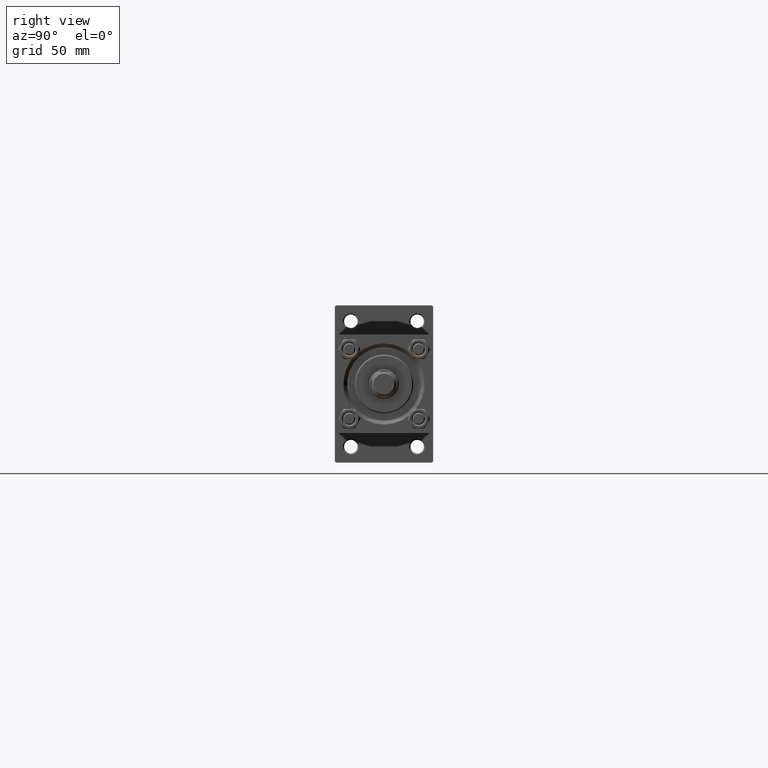
[diagram: clean part render]
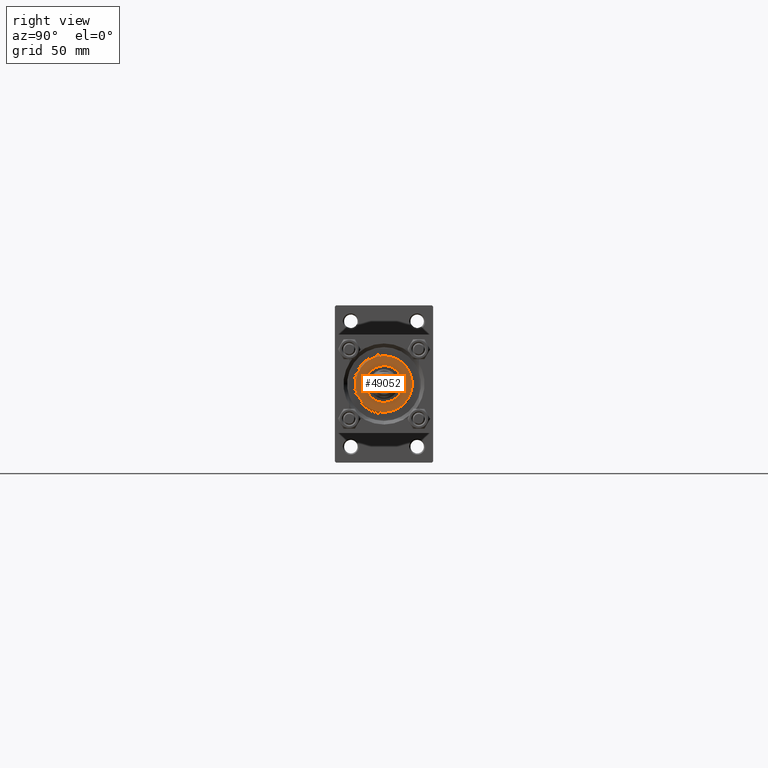
[diagram: same view with one face highlighted and labeled with its STEP entity id]
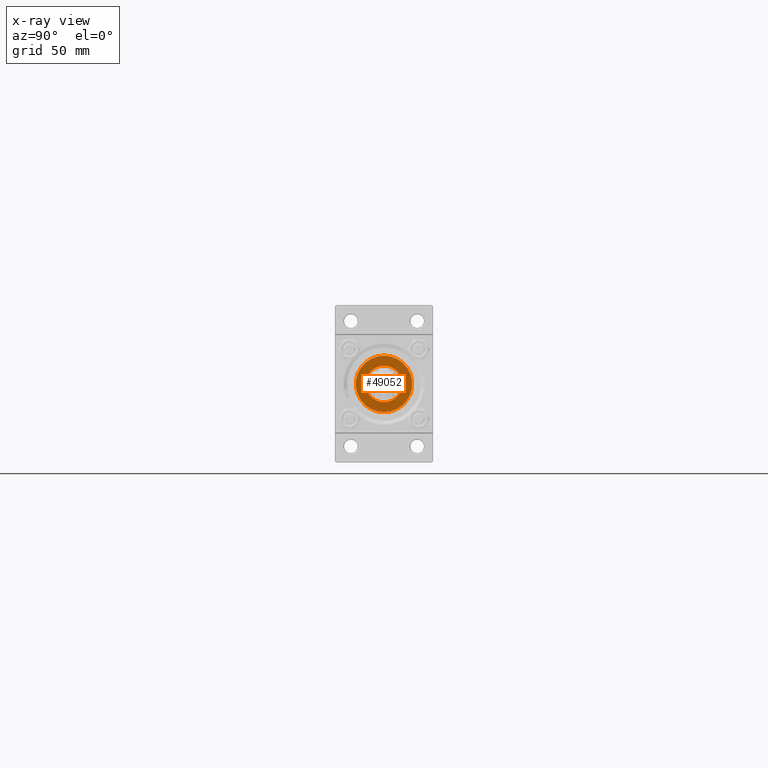
[diagram: x-ray of the same camera — body ghosted, the highlighted face saturated]
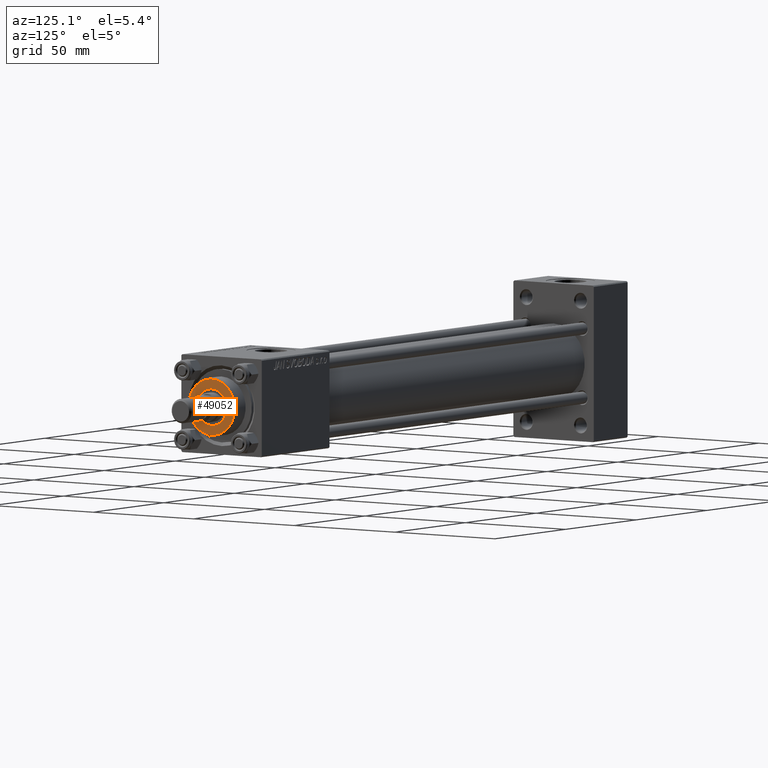
[diagram: same view with one face highlighted and labeled with its STEP entity id]
A machine part, right view. The second image highlights one B-rep face of the part: STEP entity #49052.
The next image is the same camera in x-ray: the body ghosted, the highlighted face saturated — about 0% of this face is hidden behind the body in this view.
A second angle (auxiliary view) of the same face is appended — the face is thin or edge-on in the first view.
In plain terms, the highlighted planar face has unit normal (1, 0, 0).
Its self-contained STEP definition (entity closure, byte-faithful):
#1709 = CARTESIAN_POINT ( 'NONE',  ( 0.000000000000000000, 0.000000000000000000, 35.70000000000000284 ) ) ;
#1794 = EDGE_LOOP ( 'NONE', ( #3184, #19202 ) ) ;
#3184 = ORIENTED_EDGE ( 'NONE', *, *, #30041, .T. ) ;
#3369 = DIRECTION ( 'NONE',  ( 1.000000000000000000, 0.000000000000000000, 0.000000000000000000 ) ) ;
#3658 = DIRECTION ( 'NONE',  ( 1.000000000000000000, 0.000000000000000000, -0.000000000000000000 ) ) ;
#6662 = CARTESIAN_POINT ( 'NONE',  ( 0.000000000000000000, 0.000000000000000000, 35.70000000000000284 ) ) ;
#6910 = DIRECTION ( 'NONE',  ( 1.000000000000000000, 0.000000000000000000, 0.000000000000000000 ) ) ;
#7023 = DIRECTION ( 'NONE',  ( 0.000000000000000000, 0.000000000000000000, 1.000000000000000000 ) ) ;
#7261 = DIRECTION ( 'NONE',  ( 1.000000000000000000, 0.000000000000000000, 0.000000000000000000 ) ) ;
#7462 = PLANE ( 'NONE',  #48437 ) ;
#7939 = CARTESIAN_POINT ( 'NONE',  ( 0.000000000000000000, 0.000000000000000000, 35.70000000000000284 ) ) ;
#9109 = CIRCLE ( 'NONE', #26166, 11.49999999999999645 ) ;
#9830 = DIRECTION ( 'NONE',  ( 0.000000000000000000, 0.000000000000000000, 1.000000000000000000 ) ) ;
#10218 = EDGE_CURVE ( 'NONE', #11551, #47725, #17125, .T. ) ;
#10527 = CARTESIAN_POINT ( 'NONE',  ( 0.000000000000000000, 0.000000000000000000, 35.70000000000000284 ) ) ;
#11551 = VERTEX_POINT ( 'NONE', #32302 ) ;
#12028 = EDGE_LOOP ( 'NONE', ( #21310, #43898 ) ) ;
#13549 = CIRCLE ( 'NONE', #31429, 11.49999999999999645 ) ;
#13670 = CARTESIAN_POINT ( 'NONE',  ( -7.500000000000000888, 9.184850993605149917E-16, 35.70000000000000284 ) ) ;
#13858 = AXIS2_PLACEMENT_3D ( 'NONE', #7939, #19146, #3369 ) ;
#14854 = DIRECTION ( 'NONE',  ( 0.000000000000000000, 0.000000000000000000, 1.000000000000000000 ) ) ;
#15105 = FACE_BOUND ( 'NONE', #12028, .T. ) ;
#17125 = CIRCLE ( 'NONE', #13858, 7.500000000000000888 ) ;
#17409 = CARTESIAN_POINT ( 'NONE',  ( -11.49999999999999645, 0.000000000000000000, 35.70000000000000284 ) ) ;
#17986 = EDGE_CURVE ( 'NONE', #47725, #11551, #27058, .T. ) ;
#19146 = DIRECTION ( 'NONE',  ( 0.000000000000000000, 0.000000000000000000, 1.000000000000000000 ) ) ;
#19202 = ORIENTED_EDGE ( 'NONE', *, *, #41854, .T. ) ;
#21310 = ORIENTED_EDGE ( 'NONE', *, *, #10218, .F. ) ;
#25464 = AXIS2_PLACEMENT_3D ( 'NONE', #25611, #7023, #7261 ) ;
#25611 = CARTESIAN_POINT ( 'NONE',  ( 0.000000000000000000, 0.000000000000000000, 35.70000000000000284 ) ) ;
#26166 = AXIS2_PLACEMENT_3D ( 'NONE', #1709, #9830, #37328 ) ;
#27058 = CIRCLE ( 'NONE', #25464, 7.500000000000000888 ) ;
#30041 = EDGE_CURVE ( 'NONE', #42205, #38125, #13549, .T. ) ;
#31429 = AXIS2_PLACEMENT_3D ( 'NONE', #6662, #33902, #6910 ) ;
#32302 = CARTESIAN_POINT ( 'NONE',  ( 7.500000000000000888, 0.000000000000000000, 35.70000000000000284 ) ) ;
#33902 = DIRECTION ( 'NONE',  ( 0.000000000000000000, 0.000000000000000000, 1.000000000000000000 ) ) ;
#37328 = DIRECTION ( 'NONE',  ( 1.000000000000000000, 0.000000000000000000, 0.000000000000000000 ) ) ;
#38125 = VERTEX_POINT ( 'NONE', #41438 ) ;
#41438 = CARTESIAN_POINT ( 'NONE',  ( 11.49999999999999645, 1.438959988998139963E-15, 35.70000000000000284 ) ) ;
#41854 = EDGE_CURVE ( 'NONE', #38125, #42205, #9109, .T. ) ;
#42205 = VERTEX_POINT ( 'NONE', #17409 ) ;
#43898 = ORIENTED_EDGE ( 'NONE', *, *, #17986, .F. ) ;
#47725 = VERTEX_POINT ( 'NONE', #13670 ) ;
#48437 = AXIS2_PLACEMENT_3D ( 'NONE', #10527, #14854, #3658 ) ;
#49052 = ADVANCED_FACE ( 'NONE', ( #15105, #50013 ), #7462, .T. ) ;
#50013 = FACE_OUTER_BOUND ( 'NONE', #1794, .T. ) ;